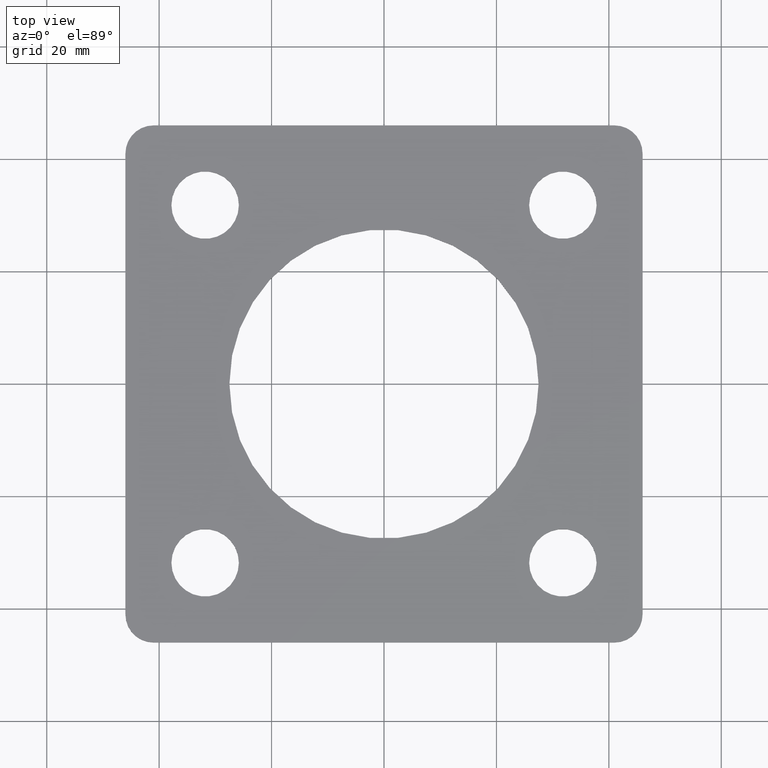
[diagram: clean part render]
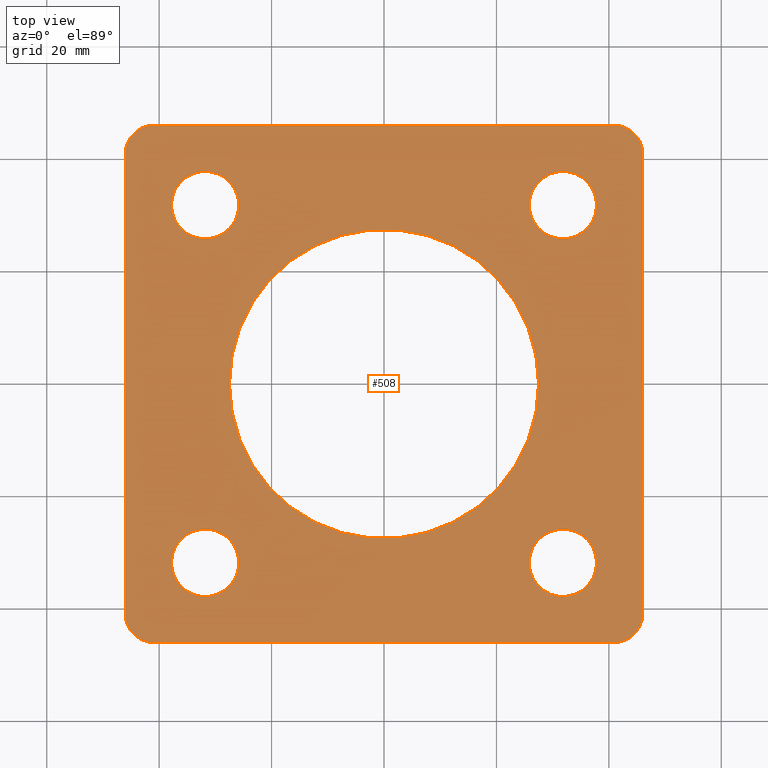
[diagram: same view with one face highlighted and labeled with its STEP entity id]
A machine part, top view. The second image highlights one B-rep face of the part: STEP entity #508.
In plain terms, the highlighted planar face has unit normal (-0, 0, 1).
Its self-contained STEP definition (entity closure, byte-faithful):
#1 = VERTEX_POINT ( 'NONE', #164 ) ;
#2 = CARTESIAN_POINT ( 'NONE',  ( -37.81980515339457583, -31.81980515339470728, 0.000000000000000000 ) ) ;
#4 = EDGE_CURVE ( 'NONE', #260, #405, #677, .T. ) ;
#5 = ORIENTED_EDGE ( 'NONE', *, *, #572, .T. ) ;
#6 = FACE_BOUND ( 'NONE', #483, .T. ) ;
#10 = FACE_BOUND ( 'NONE', #683, .T. ) ;
#11 = CARTESIAN_POINT ( 'NONE',  ( -41.00000000000000000, -46.00000000000000711, 0.000000000000000000 ) ) ;
#12 = CARTESIAN_POINT ( 'NONE',  ( -41.00000000000000711, 45.99999999999999289, 0.000000000000000000 ) ) ;
#15 = DIRECTION ( 'NONE',  ( -0.000000000000000000, 0.000000000000000000, 1.000000000000000000 ) ) ;
#18 = CIRCLE ( 'NONE', #741, 4.999999999999997335 ) ;
#19 = EDGE_CURVE ( 'NONE', #74, #254, #65, .T. ) ;
#22 = CARTESIAN_POINT ( 'NONE',  ( -46.00000000000000711, 45.99999999999999289, 0.000000000000000000 ) ) ;
#24 = VERTEX_POINT ( 'NONE', #339 ) ;
#27 = CARTESIAN_POINT ( 'NONE',  ( -37.81980515339503768, 31.81980515339424187, 0.000000000000000000 ) ) ;
#37 = EDGE_CURVE ( 'NONE', #254, #74, #696, .T. ) ;
#43 = DIRECTION ( 'NONE',  ( 0.000000000000000000, 0.000000000000000000, 1.000000000000000000 ) ) ;
#44 = AXIS2_PLACEMENT_3D ( 'NONE', #145, #663, #616 ) ;
#53 = AXIS2_PLACEMENT_3D ( 'NONE', #69, #15, #382 ) ;
#61 = ORIENTED_EDGE ( 'NONE', *, *, #279, .T. ) ;
#62 = AXIS2_PLACEMENT_3D ( 'NONE', #418, #598, #534 ) ;
#64 = FACE_BOUND ( 'NONE', #566, .T. ) ;
#65 = CIRCLE ( 'NONE', #643, 5.999999999999998224 ) ;
#68 = EDGE_CURVE ( 'NONE', #129, #443, #733, .T. ) ;
#69 = CARTESIAN_POINT ( 'NONE',  ( 41.00000000000000711, -41.00000000000000711, 0.000000000000000000 ) ) ;
#71 = ORIENTED_EDGE ( 'NONE', *, *, #597, .F. ) ;
#74 = VERTEX_POINT ( 'NONE', #730 ) ;
#77 = DIRECTION ( 'NONE',  ( -3.469446951953615372E-15, 1.000000000000000000, 0.000000000000000000 ) ) ;
#80 = CARTESIAN_POINT ( 'NONE',  ( 37.81980515339481741, -31.81980515339446214, 0.000000000000000000 ) ) ;
#82 = VERTEX_POINT ( 'NONE', #329 ) ;
#96 = ORIENTED_EDGE ( 'NONE', *, *, #272, .F. ) ;
#99 = DIRECTION ( 'NONE',  ( 1.000000000000000000, 0.000000000000000000, 0.000000000000000000 ) ) ;
#104 = EDGE_LOOP ( 'NONE', ( #498, #71 ) ) ;
#106 = CARTESIAN_POINT ( 'NONE',  ( -31.81980515339457583, -31.81980515339470728, 0.000000000000000000 ) ) ;
#110 = EDGE_LOOP ( 'NONE', ( #497, #61, #207, #595, #664, #5, #661, #429 ) ) ;
#113 = AXIS2_PLACEMENT_3D ( 'NONE', #265, #372, #77 ) ;
#114 = VERTEX_POINT ( 'NONE', #525 ) ;
#117 = EDGE_CURVE ( 'NONE', #361, #311, #440, .T. ) ;
#129 = VERTEX_POINT ( 'NONE', #345 ) ;
#131 = CARTESIAN_POINT ( 'NONE',  ( 45.99999999999999289, 40.99999999999999289, 0.000000000000000000 ) ) ;
#139 = VECTOR ( 'NONE', #473, 1000.000000000000000 ) ;
#145 = CARTESIAN_POINT ( 'NONE',  ( 0.000000000000000000, 0.000000000000000000, 0.000000000000000000 ) ) ;
#150 = VERTEX_POINT ( 'NONE', #11 ) ;
#153 = CARTESIAN_POINT ( 'NONE',  ( -31.81980515339503768, 31.81980515339424187, 0.000000000000000000 ) ) ;
#161 = DIRECTION ( 'NONE',  ( 0.000000000000000000, 0.000000000000000000, 1.000000000000000000 ) ) ;
#164 = CARTESIAN_POINT ( 'NONE',  ( -27.50000000000000000, -1.317822002168941918E-15, 0.000000000000000000 ) ) ;
#167 = EDGE_CURVE ( 'NONE', #527, #114, #520, .T. ) ;
#172 = ORIENTED_EDGE ( 'NONE', *, *, #68, .F. ) ;
#174 = CIRCLE ( 'NONE', #666, 4.999999999999997335 ) ;
#180 = EDGE_CURVE ( 'NONE', #150, #82, #698, .T. ) ;
#186 = CIRCLE ( 'NONE', #412, 4.999999999999997335 ) ;
#188 = DIRECTION ( 'NONE',  ( 1.000000000000000000, 0.000000000000000000, 0.000000000000000000 ) ) ;
#201 = CIRCLE ( 'NONE', #53, 4.999999999999997335 ) ;
#207 = ORIENTED_EDGE ( 'NONE', *, *, #356, .T. ) ;
#214 = DIRECTION ( 'NONE',  ( -0.000000000000000000, 0.000000000000000000, 1.000000000000000000 ) ) ;
#232 = DIRECTION ( 'NONE',  ( 1.040834085586084572E-14, -1.000000000000000000, 0.000000000000000000 ) ) ;
#235 = DIRECTION ( 'NONE',  ( 0.000000000000000000, 0.000000000000000000, 1.000000000000000000 ) ) ;
#245 = CARTESIAN_POINT ( 'NONE',  ( 40.99999999999998579, 45.99999999999999289, 0.000000000000000000 ) ) ;
#254 = VERTEX_POINT ( 'NONE', #411 ) ;
#260 = VERTEX_POINT ( 'NONE', #80 ) ;
#265 = CARTESIAN_POINT ( 'NONE',  ( 31.81980515339481741, -31.81980515339446214, 0.000000000000000000 ) ) ;
#272 = EDGE_CURVE ( 'NONE', #405, #260, #603, .T. ) ;
#273 = DIRECTION ( 'NONE',  ( -1.000000000000000000, 0.000000000000000000, 0.000000000000000000 ) ) ;
#279 = EDGE_CURVE ( 'NONE', #82, #701, #201, .T. ) ;
#280 = ORIENTED_EDGE ( 'NONE', *, *, #717, .F. ) ;
#282 = DIRECTION ( 'NONE',  ( 0.000000000000000000, 0.000000000000000000, 1.000000000000000000 ) ) ;
#292 = DIRECTION ( 'NONE',  ( 0.000000000000000000, 0.000000000000000000, 1.000000000000000000 ) ) ;
#308 = CIRCLE ( 'NONE', #731, 5.999999999999998224 ) ;
#309 = CARTESIAN_POINT ( 'NONE',  ( -41.00000000000000711, 40.99999999999999289, 0.000000000000000000 ) ) ;
#311 = VERTEX_POINT ( 'NONE', #27 ) ;
#315 = DIRECTION ( 'NONE',  ( 0.000000000000000000, 0.000000000000000000, 1.000000000000000000 ) ) ;
#329 = CARTESIAN_POINT ( 'NONE',  ( 41.00000000000000711, -46.00000000000000711, 0.000000000000000000 ) ) ;
#339 = CARTESIAN_POINT ( 'NONE',  ( 27.50000000000000000, -4.685600699824163028E-15, 0.000000000000000000 ) ) ;
#341 = CARTESIAN_POINT ( 'NONE',  ( 46.00000000000001421, -41.00000000000000000, 0.000000000000000000 ) ) ;
#342 = ORIENTED_EDGE ( 'NONE', *, *, #37, .F. ) ;
#345 = CARTESIAN_POINT ( 'NONE',  ( -25.81980515339457583, -31.81980515339470728, 0.000000000000000000 ) ) ;
#349 = VECTOR ( 'NONE', #606, 1000.000000000000000 ) ;
#351 = DIRECTION ( 'NONE',  ( -0.000000000000000000, 0.000000000000000000, 1.000000000000000000 ) ) ;
#352 = CARTESIAN_POINT ( 'NONE',  ( -31.81980515339503768, 31.81980515339424187, 0.000000000000000000 ) ) ;
#353 = ORIENTED_EDGE ( 'NONE', *, *, #495, .F. ) ;
#356 = EDGE_CURVE ( 'NONE', #701, #383, #624, .T. ) ;
#357 = FACE_BOUND ( 'NONE', #104, .T. ) ;
#361 = VERTEX_POINT ( 'NONE', #627 ) ;
#365 = EDGE_LOOP ( 'NONE', ( #342, #641 ) ) ;
#372 = DIRECTION ( 'NONE',  ( 0.000000000000000000, 0.000000000000000000, 1.000000000000000000 ) ) ;
#374 = AXIS2_PLACEMENT_3D ( 'NONE', #582, #292, #524 ) ;
#379 = VERTEX_POINT ( 'NONE', #12 ) ;
#382 = DIRECTION ( 'NONE',  ( 1.000000000000000000, 0.000000000000000000, 0.000000000000000000 ) ) ;
#383 = VERTEX_POINT ( 'NONE', #131 ) ;
#385 = VERTEX_POINT ( 'NONE', #245 ) ;
#397 = DIRECTION ( 'NONE',  ( -2.262682794752357144E-16, 1.000000000000000000, -0.000000000000000000 ) ) ;
#402 = DIRECTION ( 'NONE',  ( 1.000000000000000000, 0.000000000000000000, 0.000000000000000000 ) ) ;
#405 = VERTEX_POINT ( 'NONE', #425 ) ;
#411 = CARTESIAN_POINT ( 'NONE',  ( 37.81980515339457583, 31.81980515339470728, 0.000000000000000000 ) ) ;
#412 = AXIS2_PLACEMENT_3D ( 'NONE', #491, #214, #496 ) ;
#418 = CARTESIAN_POINT ( 'NONE',  ( 0.000000000000000000, -4.685600699824163028E-15, 0.000000000000000000 ) ) ;
#425 = CARTESIAN_POINT ( 'NONE',  ( 25.81980515339481741, -31.81980515339446214, 0.000000000000000000 ) ) ;
#427 = ORIENTED_EDGE ( 'NONE', *, *, #4, .F. ) ;
#429 = ORIENTED_EDGE ( 'NONE', *, *, #458, .T. ) ;
#435 = ORIENTED_EDGE ( 'NONE', *, *, #467, .F. ) ;
#438 = AXIS2_PLACEMENT_3D ( 'NONE', #106, #684, #402 ) ;
#439 = LINE ( 'NONE', #22, #349 ) ;
#440 = CIRCLE ( 'NONE', #570, 5.999999999999998224 ) ;
#443 = VERTEX_POINT ( 'NONE', #2 ) ;
#446 = DIRECTION ( 'NONE',  ( 1.000000000000000000, 0.000000000000000000, 0.000000000000000000 ) ) ;
#450 = DIRECTION ( 'NONE',  ( 1.040834085586084572E-14, -1.000000000000000000, 0.000000000000000000 ) ) ;
#453 = CARTESIAN_POINT ( 'NONE',  ( -46.00000000000000711, 40.99999999999999289, 0.000000000000000000 ) ) ;
#456 = CARTESIAN_POINT ( 'NONE',  ( -31.81980515339457583, -31.81980515339470728, 0.000000000000000000 ) ) ;
#458 = EDGE_CURVE ( 'NONE', #114, #150, #174, .T. ) ;
#460 = CARTESIAN_POINT ( 'NONE',  ( 31.81980515339457583, 31.81980515339470728, 0.000000000000000000 ) ) ;
#467 = EDGE_CURVE ( 'NONE', #1, #24, #707, .T. ) ;
#473 = DIRECTION ( 'NONE',  ( 7.542275982507857147E-17, -1.000000000000000000, 0.000000000000000000 ) ) ;
#478 = DIRECTION ( 'NONE',  ( 1.000000000000000000, 0.000000000000000000, 0.000000000000000000 ) ) ;
#483 = EDGE_LOOP ( 'NONE', ( #172, #280 ) ) ;
#491 = CARTESIAN_POINT ( 'NONE',  ( 40.99999999999999289, 40.99999999999999289, 0.000000000000000000 ) ) ;
#495 = EDGE_CURVE ( 'NONE', #24, #1, #589, .T. ) ;
#496 = DIRECTION ( 'NONE',  ( 1.000000000000000000, 0.000000000000000000, 0.000000000000000000 ) ) ;
#497 = ORIENTED_EDGE ( 'NONE', *, *, #180, .T. ) ;
#498 = ORIENTED_EDGE ( 'NONE', *, *, #117, .F. ) ;
#502 = AXIS2_PLACEMENT_3D ( 'NONE', #460, #43, #273 ) ;
#508 = ADVANCED_FACE ( 'NONE', ( #10, #585, #357, #6, #64, #695 ), #620, .T. ) ;
#514 = DIRECTION ( 'NONE',  ( 0.000000000000000000, 0.000000000000000000, 1.000000000000000000 ) ) ;
#520 = LINE ( 'NONE', #530, #139 ) ;
#524 = DIRECTION ( 'NONE',  ( 1.000000000000000000, 0.000000000000000000, 0.000000000000000000 ) ) ;
#525 = CARTESIAN_POINT ( 'NONE',  ( -46.00000000000000000, -41.00000000000000000, 0.000000000000000000 ) ) ;
#527 = VERTEX_POINT ( 'NONE', #453 ) ;
#530 = CARTESIAN_POINT ( 'NONE',  ( -46.00000000000000711, 45.99999999999999289, 0.000000000000000000 ) ) ;
#531 = CIRCLE ( 'NONE', #653, 5.999999999999998224 ) ;
#534 = DIRECTION ( 'NONE',  ( 1.000000000000000000, 0.000000000000000000, 0.000000000000000000 ) ) ;
#543 = AXIS2_PLACEMENT_3D ( 'NONE', #626, #514, #734 ) ;
#566 = EDGE_LOOP ( 'NONE', ( #353, #435 ) ) ;
#570 = AXIS2_PLACEMENT_3D ( 'NONE', #352, #235, #232 ) ;
#572 = EDGE_CURVE ( 'NONE', #379, #527, #18, .T. ) ;
#582 = CARTESIAN_POINT ( 'NONE',  ( 0.000000000000000000, -4.685600699824163028E-15, 0.000000000000000000 ) ) ;
#585 = FACE_BOUND ( 'NONE', #365, .T. ) ;
#589 = CIRCLE ( 'NONE', #374, 27.50000000000000000 ) ;
#594 = CARTESIAN_POINT ( 'NONE',  ( -41.00000000000000000, -41.00000000000000000, 0.000000000000000000 ) ) ;
#595 = ORIENTED_EDGE ( 'NONE', *, *, #619, .T. ) ;
#597 = EDGE_CURVE ( 'NONE', #311, #361, #308, .T. ) ;
#598 = DIRECTION ( 'NONE',  ( 0.000000000000000000, 0.000000000000000000, 1.000000000000000000 ) ) ;
#603 = CIRCLE ( 'NONE', #113, 5.999999999999998224 ) ;
#606 = DIRECTION ( 'NONE',  ( -1.000000000000000000, -0.000000000000000000, -0.000000000000000000 ) ) ;
#616 = DIRECTION ( 'NONE',  ( 1.000000000000000000, 0.000000000000000000, 0.000000000000000000 ) ) ;
#619 = EDGE_CURVE ( 'NONE', #383, #385, #186, .T. ) ;
#620 = PLANE ( 'NONE',  #44 ) ;
#624 = LINE ( 'NONE', #735, #629 ) ;
#626 = CARTESIAN_POINT ( 'NONE',  ( 31.81980515339481741, -31.81980515339446214, 0.000000000000000000 ) ) ;
#627 = CARTESIAN_POINT ( 'NONE',  ( -25.81980515339504123, 31.81980515339424187, 0.000000000000000000 ) ) ;
#629 = VECTOR ( 'NONE', #397, 1000.000000000000000 ) ;
#641 = ORIENTED_EDGE ( 'NONE', *, *, #19, .F. ) ;
#643 = AXIS2_PLACEMENT_3D ( 'NONE', #675, #282, #737 ) ;
#653 = AXIS2_PLACEMENT_3D ( 'NONE', #456, #161, #99 ) ;
#654 = EDGE_CURVE ( 'NONE', #385, #379, #439, .T. ) ;
#661 = ORIENTED_EDGE ( 'NONE', *, *, #167, .T. ) ;
#663 = DIRECTION ( 'NONE',  ( -0.000000000000000000, 0.000000000000000000, 1.000000000000000000 ) ) ;
#664 = ORIENTED_EDGE ( 'NONE', *, *, #654, .T. ) ;
#666 = AXIS2_PLACEMENT_3D ( 'NONE', #594, #351, #188 ) ;
#669 = DIRECTION ( 'NONE',  ( -0.000000000000000000, 0.000000000000000000, 1.000000000000000000 ) ) ;
#675 = CARTESIAN_POINT ( 'NONE',  ( 31.81980515339457583, 31.81980515339470728, 0.000000000000000000 ) ) ;
#677 = CIRCLE ( 'NONE', #543, 5.999999999999998224 ) ;
#683 = EDGE_LOOP ( 'NONE', ( #427, #96 ) ) ;
#684 = DIRECTION ( 'NONE',  ( 0.000000000000000000, 0.000000000000000000, 1.000000000000000000 ) ) ;
#695 = FACE_OUTER_BOUND ( 'NONE', #110, .T. ) ;
#696 = CIRCLE ( 'NONE', #502, 5.999999999999998224 ) ;
#698 = LINE ( 'NONE', #747, #719 ) ;
#701 = VERTEX_POINT ( 'NONE', #341 ) ;
#707 = CIRCLE ( 'NONE', #62, 27.50000000000000000 ) ;
#717 = EDGE_CURVE ( 'NONE', #443, #129, #531, .T. ) ;
#719 = VECTOR ( 'NONE', #478, 1000.000000000000000 ) ;
#730 = CARTESIAN_POINT ( 'NONE',  ( 25.81980515339457583, 31.81980515339470728, 0.000000000000000000 ) ) ;
#731 = AXIS2_PLACEMENT_3D ( 'NONE', #153, #315, #450 ) ;
#733 = CIRCLE ( 'NONE', #438, 5.999999999999998224 ) ;
#734 = DIRECTION ( 'NONE',  ( -3.469446951953615372E-15, 1.000000000000000000, 0.000000000000000000 ) ) ;
#735 = CARTESIAN_POINT ( 'NONE',  ( 45.99999999999999289, 45.99999999999999289, 0.000000000000000000 ) ) ;
#737 = DIRECTION ( 'NONE',  ( -1.000000000000000000, 0.000000000000000000, 0.000000000000000000 ) ) ;
#741 = AXIS2_PLACEMENT_3D ( 'NONE', #309, #669, #446 ) ;
#747 = CARTESIAN_POINT ( 'NONE',  ( -46.00000000000000000, -46.00000000000000711, 0.000000000000000000 ) ) ;